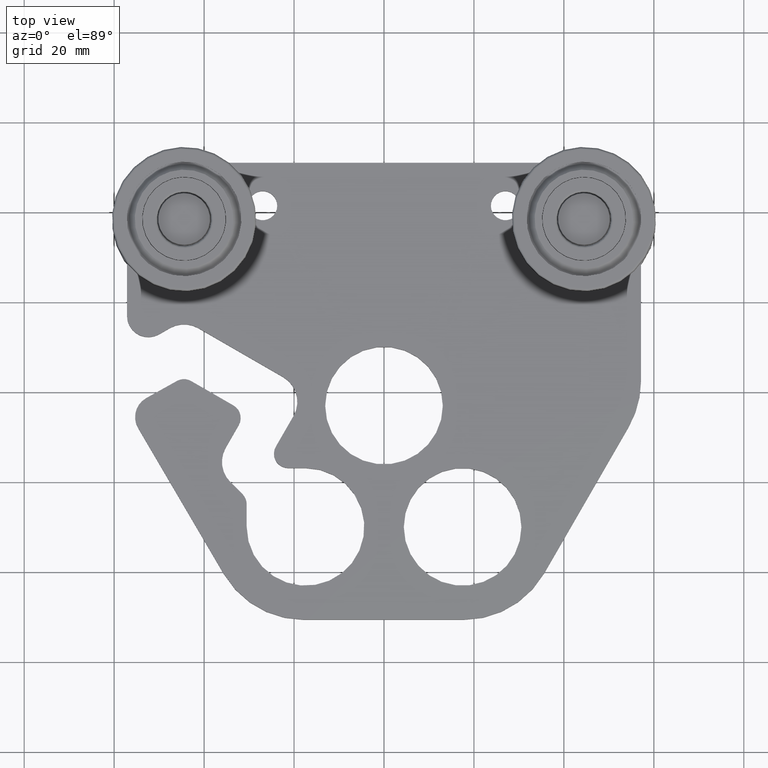
[diagram: clean part render]
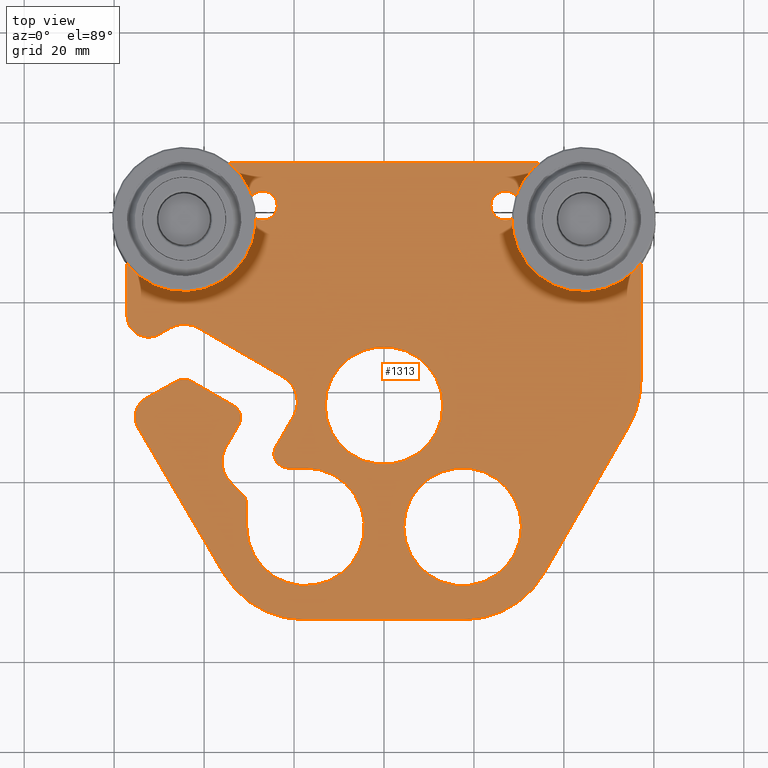
[diagram: same view with one face highlighted and labeled with its STEP entity id]
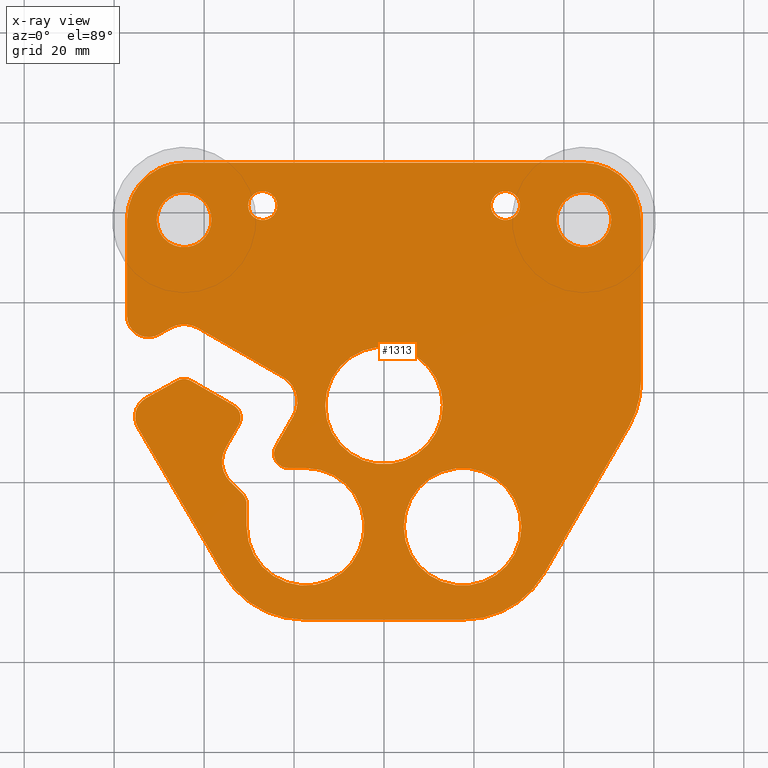
[diagram: x-ray of the same camera — body ghosted, the highlighted face saturated]
A machine part, top view. The second image highlights one B-rep face of the part: STEP entity #1313.
The next image is the same camera in x-ray: the body ghosted, the highlighted face saturated — about 0% of this face is hidden behind the body in this view.
In plain terms, the highlighted planar face has unit normal (0, 0, 1).
Its self-contained STEP definition (entity closure, byte-faithful):
#79=CARTESIAN_POINT('',(2.25,0.092656240161457,0.179));
#80=VERTEX_POINT('',#79);
#81=CARTESIAN_POINT('',(2.141136580732799,-0.313475448869807,0.179));
#82=VERTEX_POINT('',#81);
#83=CARTESIAN_POINT('',(1.437999999999999,0.092656240161458,0.179));
#84=DIRECTION('',(0.0,0.0,-1.0));
#85=DIRECTION('',(0.965901586516694,-0.258909492225628,0.0));
#86=AXIS2_PLACEMENT_3D('',#83,#84,#85);
#87=CIRCLE('',#86,0.812);
#88=EDGE_CURVE('',#80,#82,#87,.T.);
#130=CARTESIAN_POINT('',(2.25,1.499999999999999,0.179));
#131=VERTEX_POINT('',#130);
#138=CARTESIAN_POINT('',(2.25,1.499999999999999,0.179));
#139=DIRECTION('',(0.0,-1.0,0.0));
#140=VECTOR('',#139,1.407343759838542);
#141=LINE('',#138,#140);
#142=EDGE_CURVE('',#131,#80,#141,.T.);
#464=CARTESIAN_POINT('',(1.401429536415542,-1.594131689031264,0.179));
#465=VERTEX_POINT('',#464);
#466=CARTESIAN_POINT('',(0.698292955682743,-1.999999999999999,0.179));
#467=VERTEX_POINT('',#466);
#468=CARTESIAN_POINT('',(0.698292955682742,-1.187999999999999,0.179));
#469=DIRECTION('',(0.0,0.0,-1.0));
#470=DIRECTION('',(0.499918904118492,-0.866072219451106,0.0));
#471=AXIS2_PLACEMENT_3D('',#468,#469,#470);
#472=CIRCLE('',#471,0.812);
#473=EDGE_CURVE('',#465,#467,#472,.T.);
#497=CARTESIAN_POINT('',(-0.701954139889034,-2.0,0.179));
#498=VERTEX_POINT('',#497);
#499=CARTESIAN_POINT('',(0.698292955682743,-2.0,0.179));
#500=DIRECTION('',(-1.0,0.0,0.0));
#501=VECTOR('',#500,1.400247095571777);
#502=LINE('',#499,#501);
#503=EDGE_CURVE('',#467,#498,#502,.T.);
#520=CARTESIAN_POINT('',(-1.402322155518825,-1.598887627804476,0.179));
#521=VERTEX_POINT('',#520);
#522=CARTESIAN_POINT('',(-0.701954139889035,-1.188,0.179));
#523=DIRECTION('',(0.0,0.0,-1.0));
#524=DIRECTION('',(-0.496981264201868,-0.867761270760751,0.0));
#525=AXIS2_PLACEMENT_3D('',#522,#523,#524);
#526=CIRCLE('',#525,0.812);
#527=EDGE_CURVE('',#498,#521,#526,.T.);
#545=CARTESIAN_POINT('',(-2.25,1.5,0.179));
#546=VERTEX_POINT('',#545);
#547=CARTESIAN_POINT('',(-1.75,2.0,0.179));
#548=VERTEX_POINT('',#547);
#549=CARTESIAN_POINT('',(-1.75,1.5,0.179));
#550=DIRECTION('',(0.0,0.0,-1.0));
#551=DIRECTION('',(-0.707106781186547,0.707106781186548,0.0));
#552=AXIS2_PLACEMENT_3D('',#549,#550,#551);
#553=CIRCLE('',#552,0.5);
#554=EDGE_CURVE('',#546,#548,#553,.T.);
#578=CARTESIAN_POINT('',(1.750000000000001,1.999999999999999,0.179));
#579=VERTEX_POINT('',#578);
#580=CARTESIAN_POINT('',(-1.749999999999999,2.0,0.179));
#581=DIRECTION('',(1.0,0.0,0.0));
#582=VECTOR('',#581,3.5);
#583=LINE('',#580,#582);
#584=EDGE_CURVE('',#548,#579,#583,.T.);
#601=CARTESIAN_POINT('',(1.75,1.5,0.179));
#602=DIRECTION('',(0.0,0.0,-1.0));
#603=DIRECTION('',(0.707106781186548,0.707106781186548,0.0));
#604=AXIS2_PLACEMENT_3D('',#601,#602,#603);
#605=CIRCLE('',#604,0.5);
#606=EDGE_CURVE('',#579,#131,#605,.T.);
#619=CARTESIAN_POINT('',(-0.838487895917298,-0.672,0.179));
#620=VERTEX_POINT('',#619);
#621=CARTESIAN_POINT('',(-0.946739633106205,-0.484497508884976,0.179));
#622=VERTEX_POINT('',#621);
#623=CARTESIAN_POINT('',(-0.838487895917298,-0.547,0.179));
#624=DIRECTION('',(0.0,0.0,-1.0));
#625=DIRECTION('',(-0.866031156749049,-0.499990035440612,0.0));
#626=AXIS2_PLACEMENT_3D('',#623,#624,#625);
#627=CIRCLE('',#626,0.125);
#628=EDGE_CURVE('',#620,#622,#627,.T.);
#653=CARTESIAN_POINT('',(-0.686999999999999,-0.672,0.179));
#654=VERTEX_POINT('',#653);
#661=CARTESIAN_POINT('',(-0.686999999999999,-0.672,0.179));
#662=DIRECTION('',(-1.0,0.0,0.0));
#663=VECTOR('',#662,0.151487895917299);
#664=LINE('',#661,#663);
#665=EDGE_CURVE('',#654,#620,#664,.T.);
#675=CARTESIAN_POINT('',(-1.23877048098405,-0.900361312854602,0.179));
#676=VERTEX_POINT('',#675);
#677=CARTESIAN_POINT('',(-1.201999999999999,-0.988908204241111,0.179));
#678=VERTEX_POINT('',#677);
#679=CARTESIAN_POINT('',(-1.326999999999999,-0.988908204241111,0.179));
#680=DIRECTION('',(0.0,0.0,-1.0));
#681=DIRECTION('',(0.923535638762141,0.383512612486481,0.0));
#682=AXIS2_PLACEMENT_3D('',#679,#680,#681);
#683=CIRCLE('',#682,0.125);
#684=EDGE_CURVE('',#676,#678,#683,.T.);
#709=CARTESIAN_POINT('',(-1.344972446331923,-0.794539999712277,0.179));
#710=VERTEX_POINT('',#709);
#717=CARTESIAN_POINT('',(-1.344972446331923,-0.794539999712277,0.179));
#718=DIRECTION('',(0.708375131092078,-0.705836152127589,0.0));
#719=VECTOR('',#718,0.149923339607003);
#720=LINE('',#717,#719);
#721=EDGE_CURVE('',#710,#676,#720,.T.);
#731=CARTESIAN_POINT('',(-1.317247552207251,-0.124572576176225,0.179));
#732=VERTEX_POINT('',#731);
#733=CARTESIAN_POINT('',(-1.271391785064688,-0.295268097612254,0.179));
#734=VERTEX_POINT('',#733);
#735=CARTESIAN_POINT('',(-1.379695530685538,-0.232855769627357,0.179));
#736=DIRECTION('',(0.0,0.0,-1.0));
#737=DIRECTION('',(0.96575866402447,0.259442099246964,0.0));
#738=AXIS2_PLACEMENT_3D('',#735,#736,#737);
#739=CIRCLE('',#738,0.125);
#740=EDGE_CURVE('',#732,#734,#739,.T.);
#765=CARTESIAN_POINT('',(-1.688569066809053,0.089572179010027,0.179));
#766=VERTEX_POINT('',#765);
#773=CARTESIAN_POINT('',(-1.688569066809053,0.089572179010027,0.179));
#774=DIRECTION('',(0.86626554760906,-0.499583827826297,0.0));
#775=VECTOR('',#774,0.42864629169043);
#776=LINE('',#773,#775);
#777=EDGE_CURVE('',#766,#732,#776,.T.);
#787=CARTESIAN_POINT('',(-1.811926201531746,0.090445179545285,0.179));
#788=VERTEX_POINT('',#787);
#789=CARTESIAN_POINT('',(-1.751017045287341,-0.018711014441105,0.179));
#790=DIRECTION('',(0.0,0.0,-1.0));
#791=DIRECTION('',(0.007076839748981,0.999974958856054,0.0));
#792=AXIS2_PLACEMENT_3D('',#789,#790,#791);
#793=CIRCLE('',#792,0.125);
#794=EDGE_CURVE('',#788,#766,#793,.T.);
#814=CARTESIAN_POINT('',(-2.082244342010478,-0.060392342841847,0.179));
#815=VERTEX_POINT('',#814);
#822=CARTESIAN_POINT('',(-2.082244342010478,-0.060392342841847,0.179));
#823=DIRECTION('',(0.873249551891125,0.487273249955248,0.0));
#824=VECTOR('',#823,0.30955428478987);
#825=LINE('',#822,#824);
#826=EDGE_CURVE('',#815,#788,#825,.T.);
#837=CARTESIAN_POINT('',(-1.385120899541725,-0.492621560969464,0.179));
#838=VERTEX_POINT('',#837);
#845=CARTESIAN_POINT('',(-1.168513408300026,-0.617446216939257,0.179));
#846=DIRECTION('',(0.0,0.0,1.0));
#847=DIRECTION('',(-0.991274008714217,-0.131817448191223,0.0));
#848=AXIS2_PLACEMENT_3D('',#845,#846,#847);
#849=CIRCLE('',#848,0.25);
#850=EDGE_CURVE('',#838,#710,#849,.T.);
#862=CARTESIAN_POINT('',(-1.271391785064688,-0.295268097612254,0.179));
#863=DIRECTION('',(-0.499298623879171,-0.866429964966798,0.0));
#864=VECTOR('',#863,0.227777744696045);
#865=LINE('',#862,#864);
#866=EDGE_CURVE('',#734,#838,#865,.T.);
#879=CARTESIAN_POINT('',(-0.79203126722232,-0.216548998900514,0.179));
#880=VERTEX_POINT('',#879);
#887=CARTESIAN_POINT('',(-0.883575281869442,0.124985735150879,0.179));
#888=VERTEX_POINT('',#887);
#889=CARTESIAN_POINT('',(-1.008534741600135,-0.091544016670466,0.179));
#890=DIRECTION('',(0.0,0.0,1.0));
#891=DIRECTION('',(0.965904570718138,0.258898358947697,0.0));
#892=AXIS2_PLACEMENT_3D('',#889,#890,#891);
#893=CIRCLE('',#892,0.25);
#894=EDGE_CURVE('',#880,#888,#893,.T.);
#911=CARTESIAN_POINT('',(-0.946739633106205,-0.484497508884976,0.179));
#912=DIRECTION('',(0.500019928920192,0.866013897511262,0.0));
#913=VECTOR('',#912,0.309404399576599);
#914=LINE('',#911,#913);
#915=EDGE_CURVE('',#622,#880,#914,.T.);
#928=CARTESIAN_POINT('',(-1.624943190820732,0.552829634591836,0.179));
#929=VERTEX_POINT('',#928);
#936=CARTESIAN_POINT('',(-1.8750081091671,0.552745312901416,0.179));
#937=VERTEX_POINT('',#936);
#938=CARTESIAN_POINT('',(-1.749902650551425,0.33629988277049,0.179));
#939=DIRECTION('',(0.0,0.0,1.0));
#940=DIRECTION('',(-0.000337199180849,0.999999943148355,0.0));
#941=AXIS2_PLACEMENT_3D('',#938,#939,#940);
#942=CIRCLE('',#941,0.25);
#943=EDGE_CURVE('',#929,#937,#942,.T.);
#960=CARTESIAN_POINT('',(-0.883575281869442,0.124985735150879,0.179));
#961=DIRECTION('',(-0.86611900728538,0.499837838922772,0.0));
#962=VECTOR('',#961,0.855965407426989);
#963=LINE('',#960,#962);
#964=EDGE_CURVE('',#888,#929,#963,.T.);
#976=CARTESIAN_POINT('',(-2.152791142125297,-0.319694876857528,0.179));
#977=VERTEX_POINT('',#976);
#978=CARTESIAN_POINT('',(-1.990636971018892,-0.224563258597378,0.179));
#979=DIRECTION('',(0.0,0.0,-1.0));
#980=DIRECTION('',(-0.964926180845891,0.262521362022529,0.0));
#981=AXIS2_PLACEMENT_3D('',#978,#979,#980);
#982=CIRCLE('',#981,0.188);
#983=EDGE_CURVE('',#977,#815,#982,.T.);
#1002=CARTESIAN_POINT('',(-1.402322155518825,-1.598887627804476,0.179));
#1003=DIRECTION('',(-0.506019246064626,0.862522186736195,0.0));
#1004=VECTOR('',#1003,1.483083879601341);
#1005=LINE('',#1002,#1004);
#1006=EDGE_CURVE('',#521,#977,#1005,.T.);
#1018=CARTESIAN_POINT('',(-1.967920695121012,0.499041838220055,0.179));
#1019=VERTEX_POINT('',#1018);
#1020=CARTESIAN_POINT('',(-2.25,0.661808801678512,0.179));
#1021=VERTEX_POINT('',#1020);
#1022=CARTESIAN_POINT('',(-2.061999999999999,0.661808801678512,0.179));
#1023=DIRECTION('',(0.0,0.0,-1.0));
#1024=DIRECTION('',(-0.499789038263797,-0.866147168344588,0.0));
#1025=AXIS2_PLACEMENT_3D('',#1022,#1023,#1024);
#1026=CIRCLE('',#1025,0.188);
#1027=EDGE_CURVE('',#1019,#1021,#1026,.T.);
#1053=CARTESIAN_POINT('',(-2.25,0.661808801678512,0.179));
#1054=DIRECTION('',(0.0,1.0,0.0));
#1055=VECTOR('',#1054,0.838191198321488);
#1056=LINE('',#1053,#1055);
#1057=EDGE_CURVE('',#1021,#546,#1056,.T.);
#1067=CARTESIAN_POINT('',(1.203000000000001,-1.187,0.179));
#1068=VERTEX_POINT('',#1067);
#1069=CARTESIAN_POINT('',(0.688000000000001,-1.187,0.179));
#1070=DIRECTION('',(0.0,0.0,-1.0));
#1071=DIRECTION('',(-1.0,0.0,0.0));
#1072=AXIS2_PLACEMENT_3D('',#1069,#1070,#1071);
#1073=CIRCLE('',#1072,0.515);
#1074=EDGE_CURVE('',#1068,#1068,#1073,.T.);
#1087=CARTESIAN_POINT('',(0.515,-0.125,0.179));
#1088=VERTEX_POINT('',#1087);
#1089=CARTESIAN_POINT('',(0.0,-0.125,0.179));
#1090=DIRECTION('',(0.0,0.0,-1.0));
#1091=DIRECTION('',(-1.0,0.0,0.0));
#1092=AXIS2_PLACEMENT_3D('',#1089,#1090,#1091);
#1093=CIRCLE('',#1092,0.515);
#1094=EDGE_CURVE('',#1088,#1088,#1093,.T.);
#1107=CARTESIAN_POINT('',(-1.5105,1.500000000000001,0.179));
#1108=VERTEX_POINT('',#1107);
#1109=CARTESIAN_POINT('',(-1.75,1.500000000000001,0.179));
#1110=DIRECTION('',(0.0,0.0,-1.0));
#1111=DIRECTION('',(-1.0,0.0,0.0));
#1112=AXIS2_PLACEMENT_3D('',#1109,#1110,#1111);
#1113=CIRCLE('',#1112,0.2395);
#1114=EDGE_CURVE('',#1108,#1108,#1113,.T.);
#1127=CARTESIAN_POINT('',(1.989500000000001,1.500000000000001,0.179));
#1128=VERTEX_POINT('',#1127);
#1129=CARTESIAN_POINT('',(1.750000000000001,1.500000000000001,0.179));
#1130=DIRECTION('',(0.0,0.0,-1.0));
#1131=DIRECTION('',(-1.0,0.0,0.0));
#1132=AXIS2_PLACEMENT_3D('',#1129,#1130,#1131);
#1133=CIRCLE('',#1132,0.2395);
#1134=EDGE_CURVE('',#1128,#1128,#1133,.T.);
#1147=CARTESIAN_POINT('',(1.1905,1.625,0.179));
#1148=VERTEX_POINT('',#1147);
#1149=CARTESIAN_POINT('',(1.063,1.625,0.179));
#1150=DIRECTION('',(0.0,0.0,-1.0));
#1151=DIRECTION('',(-1.0,0.0,0.0));
#1152=AXIS2_PLACEMENT_3D('',#1149,#1150,#1151);
#1153=CIRCLE('',#1152,0.1275);
#1154=EDGE_CURVE('',#1148,#1148,#1153,.T.);
#1167=CARTESIAN_POINT('',(-0.9345,1.625,0.179));
#1168=VERTEX_POINT('',#1167);
#1169=CARTESIAN_POINT('',(-1.062,1.625,0.179));
#1170=DIRECTION('',(0.0,0.0,-1.0));
#1171=DIRECTION('',(-1.0,0.0,0.0));
#1172=AXIS2_PLACEMENT_3D('',#1169,#1170,#1171);
#1173=CIRCLE('',#1172,0.1275);
#1174=EDGE_CURVE('',#1168,#1168,#1173,.T.);
#1188=CARTESIAN_POINT('',(2.141136580732799,-0.313475448869807,0.179));
#1189=DIRECTION('',(-0.500162178609932,-0.865931749670935,0.0));
#1190=VECTOR('',#1189,1.478934385588844);
#1191=LINE('',#1188,#1190);
#1192=EDGE_CURVE('',#82,#465,#1191,.T.);
#1205=CARTESIAN_POINT('',(-1.201999999999999,-1.187,0.179));
#1206=VERTEX_POINT('',#1205);
#1207=CARTESIAN_POINT('',(-1.201999999999999,-0.988908204241111,0.179));
#1208=DIRECTION('',(0.0,-1.0,0.0));
#1209=VECTOR('',#1208,0.198091795758889);
#1210=LINE('',#1207,#1209);
#1211=EDGE_CURVE('',#678,#1206,#1210,.T.);
#1228=CARTESIAN_POINT('',(-0.686999999999999,-1.187,0.179));
#1229=DIRECTION('',(0.0,0.0,1.0));
#1230=DIRECTION('',(-1.0,0.0,0.0));
#1231=AXIS2_PLACEMENT_3D('',#1228,#1229,#1230);
#1232=CIRCLE('',#1231,0.515);
#1233=EDGE_CURVE('',#1206,#654,#1232,.T.);
#1247=CARTESIAN_POINT('',(-1.8750081091671,0.552745312901416,0.179));
#1248=DIRECTION('',(-0.865781720523703,-0.500421834462703,0.0));
#1249=VECTOR('',#1248,0.107316409842552);
#1250=LINE('',#1247,#1249);
#1251=EDGE_CURVE('',#937,#1019,#1250,.T.);
#1258=CARTESIAN_POINT('',(-0.338697656552065,-0.003351619278209,0.179));
#1259=DIRECTION('',(0.0,0.0,1.0));
#1260=DIRECTION('',(1.0,0.0,0.0));
#1261=AXIS2_PLACEMENT_3D('',#1258,#1259,#1260);
#1262=PLANE('',#1261);
#1263=ORIENTED_EDGE('',*,*,#88,.F.);
#1264=ORIENTED_EDGE('',*,*,#142,.F.);
#1265=ORIENTED_EDGE('',*,*,#606,.F.);
#1266=ORIENTED_EDGE('',*,*,#584,.F.);
#1267=ORIENTED_EDGE('',*,*,#554,.F.);
#1268=ORIENTED_EDGE('',*,*,#1057,.F.);
#1269=ORIENTED_EDGE('',*,*,#1027,.F.);
#1270=ORIENTED_EDGE('',*,*,#1251,.F.);
#1271=ORIENTED_EDGE('',*,*,#943,.F.);
#1272=ORIENTED_EDGE('',*,*,#964,.F.);
#1273=ORIENTED_EDGE('',*,*,#894,.F.);
#1274=ORIENTED_EDGE('',*,*,#915,.F.);
#1275=ORIENTED_EDGE('',*,*,#628,.F.);
#1276=ORIENTED_EDGE('',*,*,#665,.F.);
#1277=ORIENTED_EDGE('',*,*,#1233,.F.);
#1278=ORIENTED_EDGE('',*,*,#1211,.F.);
#1279=ORIENTED_EDGE('',*,*,#684,.F.);
#1280=ORIENTED_EDGE('',*,*,#721,.F.);
#1281=ORIENTED_EDGE('',*,*,#850,.F.);
#1282=ORIENTED_EDGE('',*,*,#866,.F.);
#1283=ORIENTED_EDGE('',*,*,#740,.F.);
#1284=ORIENTED_EDGE('',*,*,#777,.F.);
#1285=ORIENTED_EDGE('',*,*,#794,.F.);
#1286=ORIENTED_EDGE('',*,*,#826,.F.);
#1287=ORIENTED_EDGE('',*,*,#983,.F.);
#1288=ORIENTED_EDGE('',*,*,#1006,.F.);
#1289=ORIENTED_EDGE('',*,*,#527,.F.);
#1290=ORIENTED_EDGE('',*,*,#503,.F.);
#1291=ORIENTED_EDGE('',*,*,#473,.F.);
#1292=ORIENTED_EDGE('',*,*,#1192,.F.);
#1293=EDGE_LOOP('',(#1263,#1264,#1265,#1266,#1267,#1268,#1269,#1270,#1271,#1272,#1273,#1274,#1275,#1276,#1277,#1278,#1279,#1280,#1281,#1282,#1283,#1284,#1285,#1286,#1287,#1288,#1289,#1290,#1291,#1292));
#1294=FACE_OUTER_BOUND('',#1293,.T.);
#1295=ORIENTED_EDGE('',*,*,#1074,.T.);
#1296=EDGE_LOOP('',(#1295));
#1297=FACE_BOUND('',#1296,.T.);
#1298=ORIENTED_EDGE('',*,*,#1094,.T.);
#1299=EDGE_LOOP('',(#1298));
#1300=FACE_BOUND('',#1299,.T.);
#1301=ORIENTED_EDGE('',*,*,#1114,.T.);
#1302=EDGE_LOOP('',(#1301));
#1303=FACE_BOUND('',#1302,.T.);
#1304=ORIENTED_EDGE('',*,*,#1134,.T.);
#1305=EDGE_LOOP('',(#1304));
#1306=FACE_BOUND('',#1305,.T.);
#1307=ORIENTED_EDGE('',*,*,#1154,.T.);
#1308=EDGE_LOOP('',(#1307));
#1309=FACE_BOUND('',#1308,.T.);
#1310=ORIENTED_EDGE('',*,*,#1174,.T.);
#1311=EDGE_LOOP('',(#1310));
#1312=FACE_BOUND('',#1311,.T.);
#1313=ADVANCED_FACE('',(#1294,#1297,#1300,#1303,#1306,#1309,#1312),#1262,.T.);